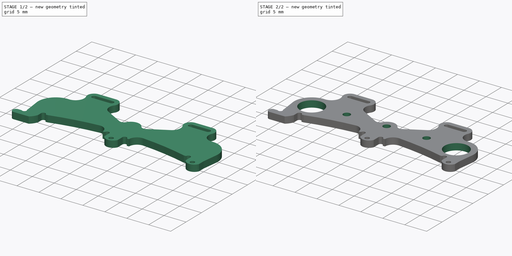
[diagram: build sequence overview — one tinted view per stage of 2, left to right]
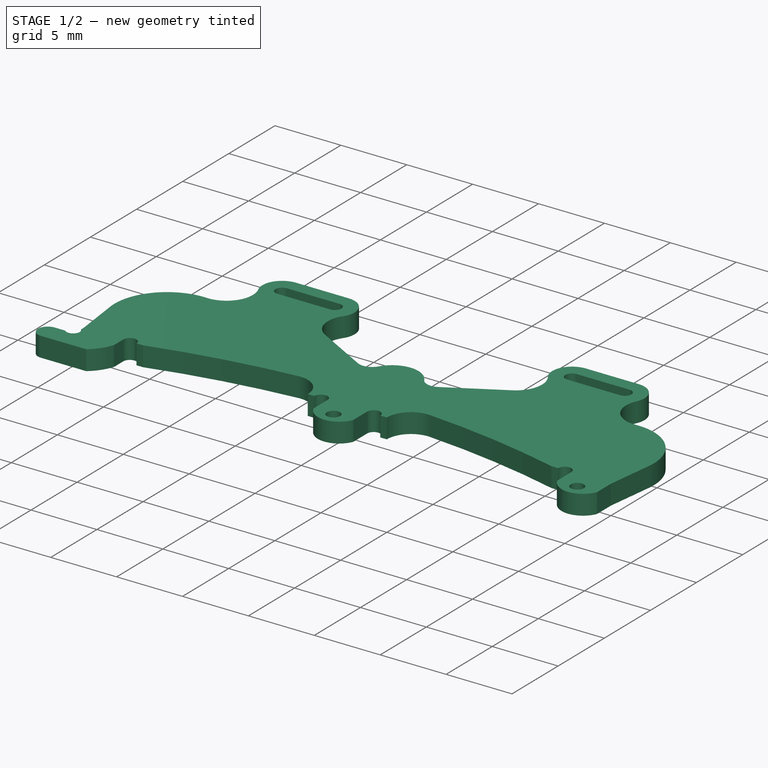
[diagram: stage 1 of 2 — iso view after this stage's code; geometry added in this stage tinted green]
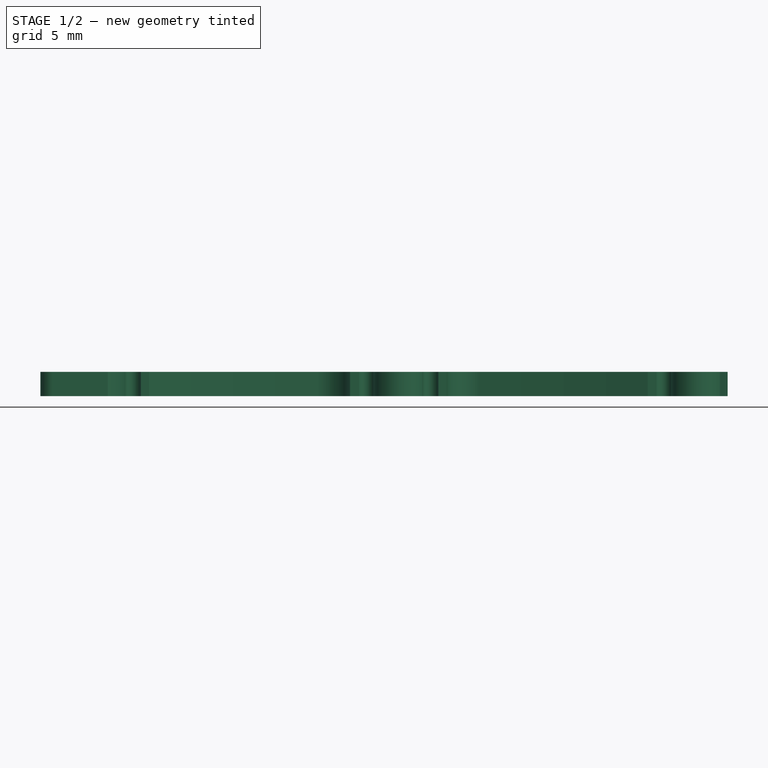
[diagram: stage 1 of 2 — front view after this stage's code; geometry added in this stage tinted green]
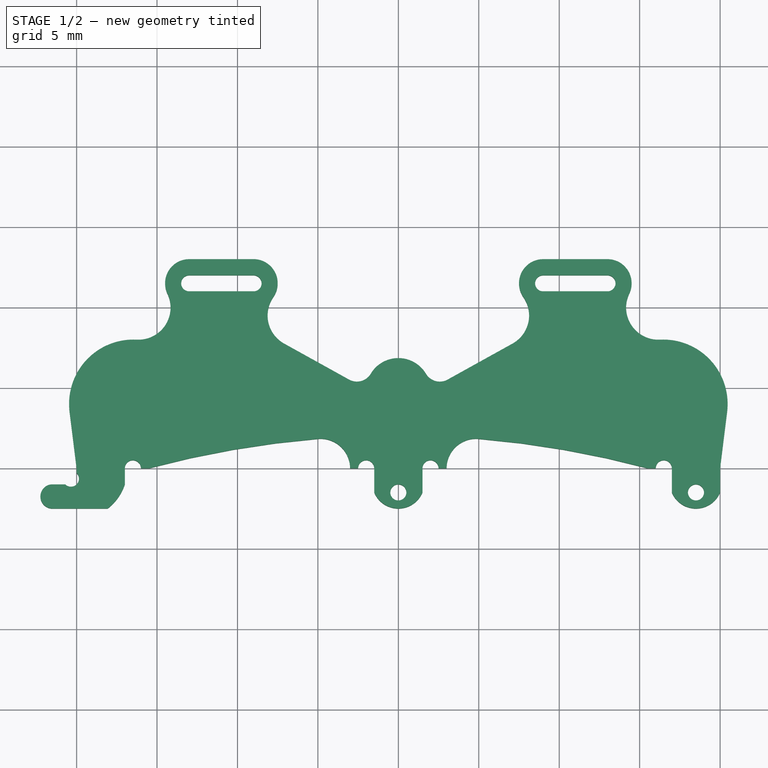
[diagram: stage 1 of 2 — top view after this stage's code; geometry added in this stage tinted green]
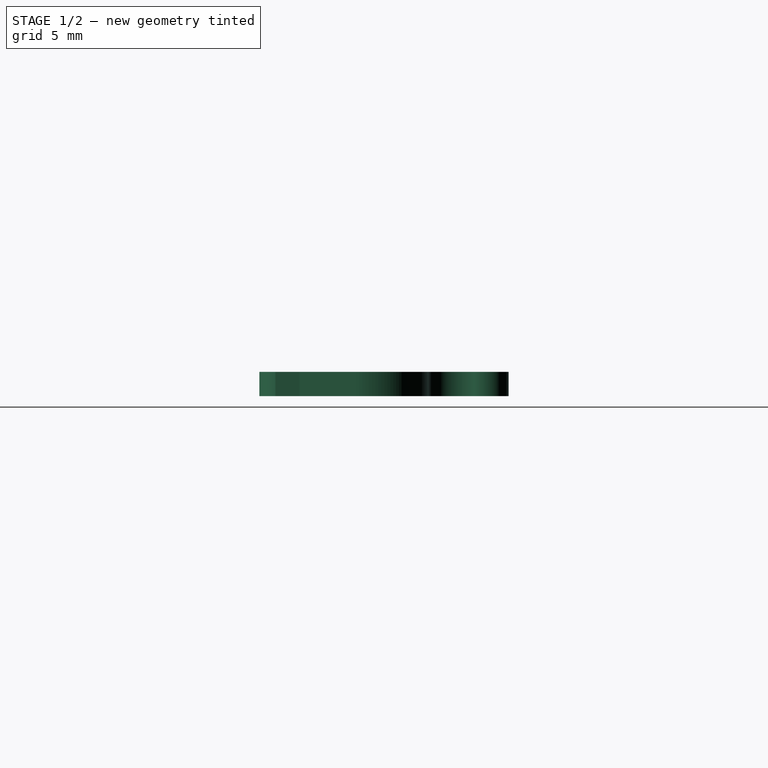
[diagram: stage 1 of 2 — right view after this stage's code; geometry added in this stage tinted green]
FCSTD DOCUMENT  (FreeCAD 0.18.1R)
Label: Flanc
License: All rights reserved
LicenseURL: http://en.wikipedia.org/wiki/All_rights_reserved
objects: Sketcher::SketchObject×3, PartDesign::Pocket×2, Spreadsheet::Sheet×1, PartDesign::Pad×1, PartDesign::Body×1
note: 10 computed .brp shape members not serialized (recipe doc carries the construction recipe); baked Part::Feature solids carry a one-line shape summary decoded from their .brp

FEATURE [Spreadsheet::Sheet] Spreadsheet
  cells = C1=nb dents; D1=Module; E1=r primitif; F1= Entraxe; B2=Z1; C2=11; D2=0.15; E2(Z1_rPrimitif)==D2 * C2 / 2; F2(z1z2_entraxe)==D2 * (C2 + C3) / 2 + 0.04 * D2 / (2 * tan(20)); B3=Z2; C3=88; E3(Z2_rPrimitif)==D2 * C3 / 2; F3(z2z3_entraxe)==D2 * (C4 + C3) / 2 + 0.04 * D2 / (2 * tan(20)); B4=Z3; C4=33; E4(Z3_rPrimitif)==D2 * C4 / 2; B6=Garde sol; C6(garde_sol)=2; B7=r Pneu; C7(pneu_rayon)==15.7 / 2
FEATURE [Sketcher::SketchObject] Sketch
  MapMode = 5
  Support = -> [XY_Plane]
  expr: Constraints[0] = Spreadsheet.pneu_rayon
  expr: Constraints[13] = Spreadsheet.Z1_rPrimitif
  expr: Constraints[8] = Spreadsheet.Z3_rPrimitif
  expr: Constraints[9] = Spreadsheet.z2z3_entraxe
  expr: Constraints[21] = Spreadsheet.z1z2_entraxe
  expr: Constraints[28] = Spreadsheet.garde_sol + 1
  expr: Constraints[6] = Spreadsheet.Z2_rPrimitif
  sketch-geometry (14):
    g0: Circle [constr] CenterX=-9.08324 CenterY=4.85 CenterZ=0 NormalX=0 NormalY=0 NormalZ=1 AngleXU=0 Radius=7.85
    g1: Circle [constr] CenterX=-9.08324 CenterY=4.85 CenterZ=0 NormalX=0 NormalY=0 NormalZ=1 AngleXU=0 Radius=6.6
    g2: Circle [constr] CenterX=9.08324 CenterY=4.85 CenterZ=0 NormalX=0 NormalY=0 NormalZ=1 AngleXU=0 Radius=6.6
    g3: LineSegment [constr] StartX=-9.08324 StartY=4.85 StartZ=0 EndX=9.08324 EndY=4.85 EndZ=0
    g4: Circle [constr] CenterX=0 CenterY=4.85 CenterZ=0 NormalX=0 NormalY=0 NormalZ=1 AngleXU=0 Radius=2.475
    g5: LineSegment [constr] StartX=-9.08324 StartY=4.85 StartZ=0 EndX=-9.08324 EndY=-3 EndZ=0
    g6: Circle [constr] CenterX=-16.4677 CenterY=4 CenterZ=0 NormalX=0 NormalY=0 NormalZ=1 AngleXU=0 Radius=0.825
    g7: Circle CenterX=-9.08324 CenterY=4.85 CenterZ=0 NormalX=0 NormalY=0 NormalZ=1 AngleXU=0 Radius=0.8
    g8: Circle CenterX=9.08324 CenterY=4.85 CenterZ=0 NormalX=0 NormalY=0 NormalZ=1 AngleXU=0 Radius=0.8
    g9: Circle CenterX=0 CenterY=4.85 CenterZ=0 NormalX=0 NormalY=0 NormalZ=1 AngleXU=0 Radius=0.8
    g10: Circle CenterX=-16.4677 CenterY=4 CenterZ=0 NormalX=0 NormalY=0 NormalZ=1 AngleXU=0 Radius=2.7
    g11: LineSegment [constr] StartX=-16.4677 StartY=4 StartZ=0 EndX=-16.4677 EndY=1.3 EndZ=0
    g12: LineSegment [constr] StartX=-16.4677 StartY=1.3 StartZ=0 EndX=-16.4677 EndY=0 EndZ=0
    g13: Circle CenterX=16.4677 CenterY=4 CenterZ=0 NormalX=0 NormalY=0 NormalZ=1 AngleXU=0 Radius=2.7
  constraints (34):
    c: Radius(g0) = 7.85
    c: Coincident(g1,g0)
    c: Coincident(g3,g0)
    c: Coincident(g3,g2)
    c: Symmetric(g0,g2,g-2)
    c: Equal(g1,g2)
    c: Radius(g1) = 6.6
    c: PointOnObject(g4,g-2)
    c: Radius(g4) = 2.475
    c: Distance(g3,g4) = 9.08324
    c: PointOnObject(g5,g0)
    c: Coincident(g5,g0)
    c: Vertical(g5)
    c: Radius(g6) = 0.825
    c: Coincident(g4,g9)
    c: Radius(g7) = 0.8
    c: Equal(g7,g9)
    c: Equal(g7,g8)
    c: Coincident(g7,g0)
    c: Coincident(g8,g2)
    c: Radius(g10) = 2.7
    c: Distance(g10,g7) = 7.43324
    c: Coincident(g11,g10)
    c: PointOnObject(g11,g10)
    c: Vertical(g11)
    c: Coincident(g12,g11)
    c: Vertical(g12)
    c: DistanceY(g12,g12) = 1.3
    c: DistanceY(g5,g12) = 3
    c: Coincident(g6,g10)
    c: PointOnObject(g12,g-1)
    c: Radius(g13) = 2.7
    c: Symmetric(g13,g10,g-2)
    c: Horizontal(g9,g7)
FEATURE [Sketcher::SketchObject] Sketch006
  MapMode = 5
  Support = -> [XY_Plane]
  sketch-geometry (9):
    g0: ArcOfCircle CenterX=-13 CenterY=11.5 CenterZ=0 NormalX=0 NormalY=0 NormalZ=1 AngleXU=0 Radius=0.5 StartAngle=1.5708 EndAngle=4.71239
    g1: ArcOfCircle CenterX=-9 CenterY=11.5 CenterZ=0 NormalX=0 NormalY=0 NormalZ=1 AngleXU=0 Radius=0.5 StartAngle=4.71239 EndAngle=7.85398
    g2: LineSegment StartX=-13 StartY=11 StartZ=0 EndX=-9 EndY=11 EndZ=0
    g3: LineSegment StartX=-13 StartY=12 StartZ=0 EndX=-9 EndY=12 EndZ=0
    g4: ArcOfCircle CenterX=9 CenterY=11.5 CenterZ=0 NormalX=0 NormalY=0 NormalZ=1 AngleXU=0 Radius=0.5 StartAngle=1.5708 EndAngle=4.71239
    g5: ArcOfCircle CenterX=13 CenterY=11.5 CenterZ=0 NormalX=0 NormalY=0 NormalZ=1 AngleXU=0 Radius=0.5 StartAngle=4.71239 EndAngle=7.85398
    g6: LineSegment StartX=9 StartY=11 StartZ=0 EndX=13 EndY=11 EndZ=0
    g7: LineSegment StartX=9 StartY=12 StartZ=0 EndX=13 EndY=12 EndZ=0
    g8: LineSegment [constr] StartX=-9 StartY=11.5 StartZ=0 EndX=9 EndY=11.5 EndZ=0
  constraints (22):
    c: Tangent(g0,g3) = 1.5708
    c: Tangent(g0,g2) = -1.5708
    c: Tangent(g2,g1) = -1.5708
    c: Tangent(g3,g1) = 1.5708
    c: Horizontal(g2)
    c: Equal(g0,g1)
    c: Tangent(g4,g7) = 1.5708
    c: Tangent(g4,g6) = -1.5708
    c: Tangent(g6,g5) = -1.5708
    c: Tangent(g7,g5) = 1.5708
    c: Horizontal(g6)
    c: Equal(g4,g5)
    c: Coincident(g8,g1)
    c: Horizontal(g8)
    c: Radius(g0) = 0.5
    c: DistanceX(g2,g2) = 4
    c: DistanceX(g0,g-1) = 13
    c: DistanceY(g-1,g0) = 11.5
    c: DistanceX(g-1,g5) = 13
    c: DistanceX(g6,g6) = 4
    c: Coincident(g4,g8)
    c: Equal(g0,g4)
FEATURE [Sketcher::SketchObject] Sketch007
  MapMode = 5
  expr: Constraints[100] = Spreadsheet.pneu_rayon
  expr: Constraints[108] = Spreadsheet.z1z2_entraxe
  expr: Constraints[98] = Spreadsheet.garde_sol
  expr: Constraints[106] = Spreadsheet.z2z3_entraxe * 2
  expr: Constraints[99] = Spreadsheet.z1z2_entraxe
  sketch-geometry (65):
    g0: LineSegment [constr] StartX=-20 StartY=-1 StartZ=0 EndX=20 EndY=-1 EndZ=0
    g1: LineSegment [constr] StartX=-20 StartY=13 StartZ=0 EndX=20 EndY=13 EndZ=0
    g2: LineSegment [constr] StartX=20 StartY=13 StartZ=0 EndX=20 EndY=0 EndZ=0
    g3: LineSegment [constr] StartX=20 StartY=0 StartZ=0 EndX=-20 EndY=0 EndZ=0
    g4: LineSegment [constr] StartX=-20 StartY=0 StartZ=0 EndX=-20 EndY=13 EndZ=0
    g5: LineSegment StartX=-20 StartY=0 StartZ=0 EndX=-20 EndY=-0.292893 EndZ=0
    g6: LineSegment [constr] StartX=-20 StartY=-1 StartZ=0 EndX=-20 EndY=-0.292893 EndZ=0
    g7: LineSegment [constr] StartX=-20 StartY=-1 StartZ=0 EndX=-20.7071 EndY=-1 EndZ=0
    g8: ArcOfCircle CenterX=-20.3536 CenterY=-0.646447 CenterZ=0 NormalX=0 NormalY=0 NormalZ=1 AngleXU=0 Radius=0.5 StartAngle=3.92699 EndAngle=7.06858
    g9: LineSegment StartX=-20.7071 StartY=-1 StartZ=0 EndX=-21.5 EndY=-1 EndZ=0
    g10: ArcOfCircle CenterX=-21.5 CenterY=-1.75 CenterZ=0 NormalX=0 NormalY=0 NormalZ=1 AngleXU=0 Radius=0.75 StartAngle=1.5708 EndAngle=4.71239
    g11: LineSegment StartX=-21.5 StartY=-2.5 StartZ=0 EndX=-18.0635 EndY=-2.5 EndZ=0
    g12: ArcOfCircle CenterX=-16.5 CenterY=0 CenterZ=0 NormalX=0 NormalY=0 NormalZ=1 AngleXU=0 Radius=0.5 StartAngle=0 EndAngle=3.14159
    g13: ArcOfCircle CenterX=-20 CenterY=0 CenterZ=0 NormalX=0 NormalY=0 NormalZ=1 AngleXU=0 Radius=3.16228 StartAngle=5.37145 EndAngle=5.96143
    g14: LineSegment StartX=-17 StartY=0 StartZ=0 EndX=-17 EndY=-1 EndZ=0
    g15: ArcOfCircle CenterX=16.5 CenterY=0 CenterZ=0 NormalX=0 NormalY=0 NormalZ=1 AngleXU=0 Radius=0.5 StartAngle=0 EndAngle=3.14159
    g16: LineSegment StartX=17 StartY=0 StartZ=0 EndX=17 EndY=-1.5 EndZ=0
    g17: ArcOfCircle CenterX=18.5 CenterY=-0.875 CenterZ=0 NormalX=0 NormalY=0 NormalZ=1 AngleXU=0 Radius=1.625 StartAngle=3.53638 EndAngle=5.88839
    g18: LineSegment StartX=20 StartY=-1.5 StartZ=0 EndX=20 EndY=0 EndZ=0
    g19: Circle CenterX=18.5 CenterY=-1.5 CenterZ=0 NormalX=0 NormalY=0 NormalZ=1 AngleXU=0 Radius=0.5
    g20: LineSegment [constr] StartX=17 StartY=-1.5 StartZ=0 EndX=17 EndY=-2.5 EndZ=0
    g21: LineSegment [constr] StartX=17 StartY=-2.5 StartZ=0 EndX=20 EndY=-2.5 EndZ=0
    g22: ArcOfCircle CenterX=-13 CenterY=11.5 CenterZ=0 NormalX=0 NormalY=0 NormalZ=1 AngleXU=0 Radius=1.5 StartAngle=1.5708 EndAngle=3.58703
    g23: ArcOfCircle CenterX=13 CenterY=11.5 CenterZ=0 NormalX=0 NormalY=0 NormalZ=1 AngleXU=0 Radius=1.5 StartAngle=5.83775 EndAngle=7.85398
    g24: ArcOfCircle CenterX=-9 CenterY=11.5 CenterZ=0 NormalX=0 NormalY=0 NormalZ=1 AngleXU=0 Radius=1.5 StartAngle=5.67496 EndAngle=7.85398
    g25: LineSegment StartX=-13 StartY=13 StartZ=0 EndX=-9 EndY=13 EndZ=0
    g26: ArcOfCircle CenterX=9 CenterY=11.5 CenterZ=0 NormalX=0 NormalY=0 NormalZ=1 AngleXU=0 Radius=1.5 StartAngle=1.5708 EndAngle=3.74982
    g27: LineSegment StartX=13 StartY=13 StartZ=0 EndX=9 EndY=13 EndZ=0
    g28: ArcOfCircle CenterX=6.12768 CenterY=9.50006 CenterZ=0 NormalX=0 NormalY=0 NormalZ=1 AngleXU=0 Radius=2 StartAngle=5.21877 EndAngle=6.89141
    g29: ArcOfCircle CenterX=-6.12768 CenterY=9.50006 CenterZ=0 NormalX=0 NormalY=0 NormalZ=1 AngleXU=0 Radius=2 StartAngle=2.53337 EndAngle=4.20601
    g30: LineSegment [constr] StartX=-13 StartY=11.5 StartZ=0 EndX=13 EndY=11.5 EndZ=0
    g31: ArcOfCircle CenterX=0 CenterY=-57.9634 CenterZ=0 NormalX=0 NormalY=0 NormalZ=1 AngleXU=0 Radius=60 StartAngle=1.3095 EndAngle=1.48757
    g32: LineSegment StartX=-16 StartY=0 StartZ=0 EndX=-15.5 EndY=0 EndZ=0
    g33: LineSegment StartX=16 StartY=0 StartZ=0 EndX=15.5 EndY=0 EndZ=0
    g34: Circle [constr] CenterX=-16.4677 CenterY=4 CenterZ=0 NormalX=0 NormalY=0 NormalZ=1 AngleXU=0 Radius=4
    g35: Circle [constr] CenterX=-9.08324 CenterY=4.85 CenterZ=0 NormalX=0 NormalY=0 NormalZ=1 AngleXU=0 Radius=7.85
    g36: LineSegment [constr] StartX=-9.08324 StartY=4.85 StartZ=0 EndX=-9.08324 EndY=-3 EndZ=0
    g37: LineSegment StartX=-20 StartY=0 StartZ=0 EndX=-20.437 EndY=3.50514 EndZ=0
    g38: LineSegment StartX=20 StartY=0 StartZ=0 EndX=20.437 EndY=3.50514 EndZ=0
    g39: Circle [constr] CenterX=9.08324 CenterY=4.85 CenterZ=0 NormalX=0 NormalY=0 NormalZ=1 AngleXU=0 Radius=7.85
    g40: Circle [constr] CenterX=16.4677 CenterY=4 CenterZ=0 NormalX=0 NormalY=0 NormalZ=1 AngleXU=0 Radius=4
    g41: ArcOfCircle CenterX=16.4677 CenterY=4 CenterZ=0 NormalX=0 NormalY=0 NormalZ=1 AngleXU=0 Radius=4 StartAngle=6.15915 EndAngle=7.90554
    g42: Circle [constr] CenterX=-9.08324 CenterY=4.85 CenterZ=0 NormalX=0 NormalY=0 NormalZ=1 AngleXU=0 Radius=3.5
    g43: LineSegment StartX=1.5 StartY=1e-16 StartZ=0 EndX=1.5 EndY=-1.5 EndZ=0
    g44: LineSegment StartX=-1.5 StartY=-1.5 StartZ=0 EndX=-1.5 EndY=0 EndZ=0
    g45: ArcOfCircle CenterX=1e-16 CenterY=-0.875 CenterZ=0 NormalX=0 NormalY=0 NormalZ=1 AngleXU=0 Radius=1.625 StartAngle=3.53638 EndAngle=5.88839
    g46: LineSegment [constr] StartX=1.5 StartY=-2.5 StartZ=0 EndX=-1.5 EndY=-2.5 EndZ=0
    g47: LineSegment [constr] StartX=-1.5 StartY=-1.5 StartZ=0 EndX=-1.5 EndY=-2.5 EndZ=0
    g48: ArcOfCircle CenterX=0 CenterY=-57.9634 CenterZ=0 NormalX=0 NormalY=0 NormalZ=1 AngleXU=0 Radius=60 StartAngle=1.65402 EndAngle=1.83209
    g49: ArcOfCircle CenterX=16.1585 CenterY=9.99203 CenterZ=0 NormalX=0 NormalY=0 NormalZ=1 AngleXU=0 Radius=2 StartAngle=2.69616 EndAngle=4.76395
    g50: ArcOfCircle CenterX=-16.4677 CenterY=4 CenterZ=0 NormalX=0 NormalY=0 NormalZ=1 AngleXU=0 Radius=4 StartAngle=1.51923 EndAngle=3.26563
    g51: ArcOfCircle CenterX=-16.1585 CenterY=9.99203 CenterZ=0 NormalX=0 NormalY=0 NormalZ=1 AngleXU=0 Radius=2 StartAngle=4.66083 EndAngle=6.72862
    g52: LineSegment [constr] StartX=-9.08324 StartY=4.85 StartZ=0 EndX=9.08324 EndY=4.85 EndZ=0
    g53: ArcOfCircle CenterX=0 CenterY=4.85 CenterZ=0 NormalX=0 NormalY=0 NormalZ=1 AngleXU=0 Radius=2 StartAngle=0.537888 EndAngle=2.6037
    g54: ArcOfCircle CenterX=2.57638 CenterY=6.38697 CenterZ=0 NormalX=0 NormalY=0 NormalZ=1 AngleXU=0 Radius=1 StartAngle=3.67948 EndAngle=5.21876
    g55: ArcOfCircle CenterX=-2.57638 CenterY=6.38697 CenterZ=0 NormalX=0 NormalY=0 NormalZ=1 AngleXU=0 Radius=1 StartAngle=4.20601 EndAngle=5.7453
    g56: LineSegment StartX=3.06139 StartY=5.51246 StartZ=0 EndX=7.09771 EndY=7.75105 EndZ=0
    g57: Circle CenterX=0 CenterY=-1.5 CenterZ=0 NormalX=0 NormalY=0 NormalZ=1 AngleXU=0 Radius=0.5
    g58: LineSegment StartX=-7.09771 StartY=7.75105 StartZ=0 EndX=-3.06139 EndY=5.51246 EndZ=0
    g59: ArcOfCircle CenterX=-4.83532 CenterY=0 CenterZ=0 NormalX=0 NormalY=0 NormalZ=1 AngleXU=0 Radius=1.83532 StartAngle=0 EndAngle=1.65402
    g60: ArcOfCircle CenterX=-2 CenterY=0 CenterZ=0 NormalX=0 NormalY=0 NormalZ=1 AngleXU=0 Radius=0.5 StartAngle=0 EndAngle=3.14159
    g61: LineSegment StartX=-2.5 StartY=0 StartZ=0 EndX=-3 EndY=0 EndZ=0
    g62: ArcOfCircle CenterX=4.83532 CenterY=0 CenterZ=0 NormalX=0 NormalY=0 NormalZ=1 AngleXU=0 Radius=1.83532 StartAngle=1.48757 EndAngle=3.14159
    g63: LineSegment StartX=2.5 StartY=0 StartZ=0 EndX=3 EndY=0 EndZ=0
    g64: ArcOfCircle CenterX=2 CenterY=0 CenterZ=0 NormalX=0 NormalY=0 NormalZ=1 AngleXU=0 Radius=0.5 StartAngle=0 EndAngle=3.14159
  constraints (192):
    c: Symmetric(g0,g0,g-2)
    c: DistanceX(g0,g0) = 40
    c: Coincident(g1,g2)
    c: Coincident(g2,g3)
    c: Coincident(g3,g4)
    c: Coincident(g4,g1)
    c: Horizontal(g1)
    c: Horizontal(g3)
    c: Vertical(g4)
    c: Equal(g1,g0)
    c: DistanceY(g0,g3) = 1
    c: Vertical(g0,g3)
    c: Coincident(g5,g3)
    c: Vertical(g5)
    c: Coincident(g6,g0)
    c: Coincident(g6,g5)
    c: Coincident(g7,g6)
    c: Horizontal(g7)
    c: Coincident(g8,g5)
    c: Coincident(g8,g7)
    c: Equal(g7,g6)
    c: PointOnObject(g6,g8)
    c: Radius(g8) = 0.5
    c: Coincident(g9,g8)
    c: Horizontal(g9)
    c: Horizontal(g11)
    c: PointOnObject(g12,g3)
    c: PointOnObject(g12,g3)
    c: PointOnObject(g12,g3)
    c: Radius(g12) = 0.5
    c: Tangent(g10,g9) = -1.5708
    c: Tangent(g11,g10) = -1.5708
    c: Radius(g10) = 0.75
    c: DistanceX(g9,g5) = 1.5
    c: Coincident(g13,g4)
    c: Coincident(g13,g11)
    c: Coincident(g14,g12)
    c: Vertical(g14)
    c: Coincident(g13,g14)
    c: PointOnObject(g13,g0)
    c: Distance(g12,g4) = 3
    c: PointOnObject(g15,g3)
    c: PointOnObject(g15,g3)
    c: PointOnObject(g15,g3)
    c: Coincident(g16,g15)
    c: Vertical(g16)
    c: Coincident(g18,g17)
    c: Coincident(g18,g2)
    c: Vertical(g18)
    c: DistanceX(g15,g2) = 3
    c: Coincident(g17,g16)
    c: Radius(g19) = 0.5
    c: Horizontal(g16,g19)
    c: Horizontal(g19,g17)
    c: DistanceY(g16,g15) = 1.5
    c: Coincident(g20,g16)
    c: Vertical(g20)
    c: Coincident(g21,g20)
    c: Horizontal(g21)
    c: DistanceX(g21,g21) = 3
    c: DistanceY(g20,g20) = 1
    c: Tangent(g17,g21)
    c: Radius(g15) = 0.5
    c: Vertical(g19,g17)
    c: PointOnObject(g12,g-1)
    c: Distance(g22,g3) = 11.5
    c: Radius(g22) = 1.5
    c: DistanceX(g22,g24) = 4
    c: PointOnObject(g24,g1)
    c: Tangent(g24,g1)
    c: Coincident(g25,g24)
    c: Horizontal(g25)
    c: Tangent(g25,g22) = 1.5708
    c: DistanceX(g26,g23) = 4
    c: Horizontal(g27)
    c: Tangent(g26,g27) = -1.5708
    c: Tangent(g28,g26) = 1.5708
    c: Horizontal(g29,g28)
    c: Tangent(g29,g24) = 1.5708
    c: Coincident(g30,g22)
    c: Coincident(g30,g23)
    c: PointOnObject(g24,g30)
    c: PointOnObject(g26,g30)
    c: Tangent(g27,g23) = -1.5708
    c: PointOnObject(g31,g-2)
    c: Coincident(g32,g12)
    c: Coincident(g32,g48)
    c: Horizontal(g32)
    c: Coincident(g33,g15)
    c: Coincident(g33,g31)
    c: Horizontal(g33)
    c: Radius(g31) = 60
    c: DistanceX(g32,g32) = 0.5
    c: Radius(g34) = 4
    c: Tangent(g34,g3)
    c: Coincident(g36,g35)
    c: PointOnObject(g36,g35)
    c: Vertical(g36)
    c: DistanceY(g36,g9) = 2
    c: Distance(g34,g35) = 7.43324
    c: Radius(g35) = 7.85
    c: Coincident(g37,g5)
    c: Coincident(g38,g18)
    c: Equal(g39,g35)
    c: Equal(g40,g34)
    c: PointOnObject(g0,g18)
    c: DistanceX(g35,g39) = 18.1665
    c: Symmetric(g39,g35,g-2)
    c: Distance(g39,g40) = 7.43324
    c: Coincident(g41,g40)
    c: Tangent(g40,g3)
    c: Tangent(g38,g41) = -1.5708
    c: PointOnObject(g26,g1)
    c: Coincident(g42,g35)
    c: Radius(g42) = 3.5
    c: Vertical(g43)
    c: Vertical(g44)
    c: Coincident(g45,g43)
    c: Coincident(g45,g44)
    c: Symmetric(g43,g44,g-2)
    c: Horizontal(g46)
    c: Coincident(g47,g44)
    c: Coincident(g47,g46)
    c: DistanceX(g46,g46) = 3
    c: Vertical(g47)
    c: DistanceY(g47,g47) = 1
    c: Horizontal(g44,g43)
    c: Tangent(g46,g45)
    c: Horizontal(g46,g20)
    c: Equal(g31,g48)
    c: Coincident(g31,g48)
    c: DistanceX(g-1,g23) = 13
    c: DistanceX(g22,g-1) = 13
    c: Radius(g29) = 2
    c: PointOnObject(g41,g40)
    c: PointOnObject(g44,g3)
    c: Vertical(g43,g46)
    c: Tangent(g49,g23) = 1.5708
    c: Tangent(g49,g41) = 1.5708
    c: Coincident(g50,g34)
    c: Tangent(g51,g22) = 1.5708
    c: Tangent(g51,g50) = 1.5708
    c: Radius(g51) = 2
    c: PointOnObject(g50,g34)
    c: Tangent(g50,g37) = 1.5708
    c: Coincident(g52,g35)
    c: Coincident(g52,g39)
    c: Coincident(g55,g53)
    c: Coincident(g56,g54)
    c: Coincident(g56,g28)
    c: PointOnObject(g53,g-2)
    c: PointOnObject(g53,g52)
    c: Radius(g53) = 2
    c: Tangent(g54,g53) = 1.5708
    c: Tangent(g54,g56)
    c: Tangent(g55,g53)
    c: Tangent(g56,g28)
    c: Equal(g54,g55)
    c: Radius(g54) = 1
    c: Horizontal(g53,g53)
    c: Horizontal(g29,g28)
    c: Horizontal(g55,g54)
    c: PointOnObject(g57,g-2)
    c: Equal(g19,g57)
    c: Horizontal(g57,g19)
    c: Horizontal(g30)
    c: Coincident(g58,g29)
    c: Coincident(g58,g55)
    c: Tangent(g58,g55)
    c: Tangent(g58,g29)
    c: Tangent(g58,g42)
    c: Tangent(g59,g48) = -1.5708
    c: PointOnObject(g60,g3)
    c: Coincident(g60,g44)
    c: Radius(g60) = 0.5
    c: Coincident(g61,g60)
    c: Horizontal(g61)
    c: Coincident(g59,g61)
    c: Perpendicular(g59,g61)
    c: PointOnObject(g59,g3)
    c: DistanceX(g61,g61) = 0.5
    c: Coincident(g63,g64)
    c: Horizontal(g63)
    c: Coincident(g62,g63)
    c: Perpendicular(g62,g63)
    c: Tangent(g31,g62) = -1.5708
    c: Equal(g63,g61)
    c: PointOnObject(g62,g3)
    c: Coincident(g64,g43)
    c: Equal(g64,g60)
    c: PointOnObject(g64,g3)
    c: Equal(g49,g51)
FEATURE [PartDesign::Pad] Pad001
  Length = 1.5
  Length2 = 100
  Profile = -> Sketch007
  Type = 0
FEATURE [PartDesign::Pocket] Pocket
  BaseFeature = -> Pad001
  Length = 5
  Length2 = 100
  Midplane = true
  Profile = -> Sketch006
  Reversed = true
  Type = 1
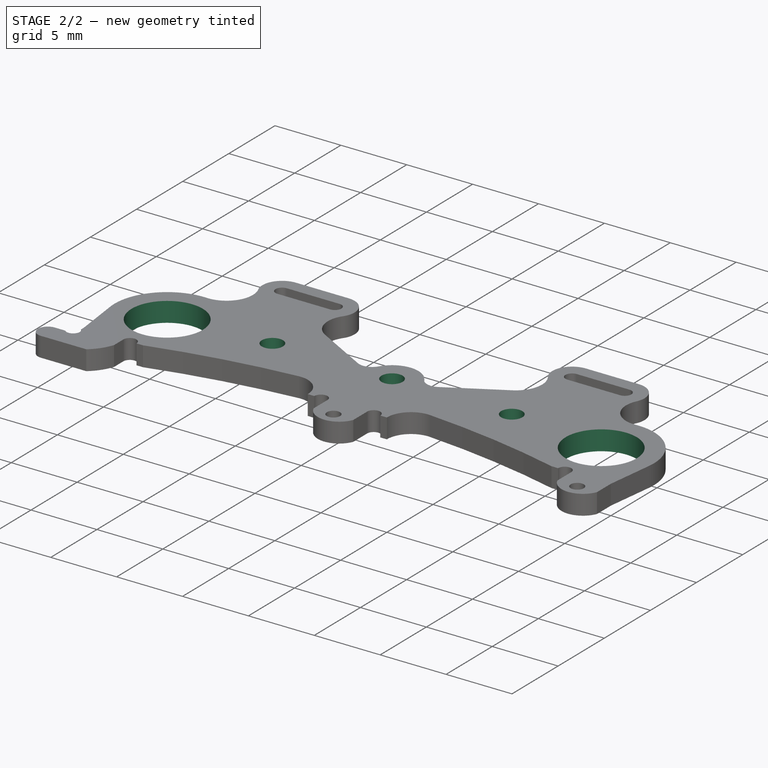
[diagram: stage 2 of 2 — iso view after this stage's code; geometry added in this stage tinted green]
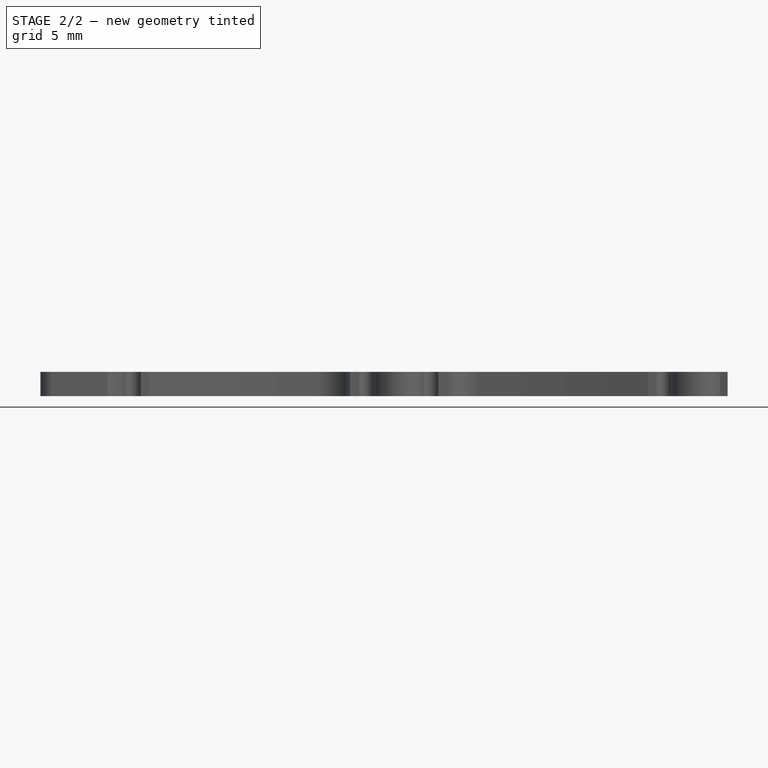
[diagram: stage 2 of 2 — front view after this stage's code; geometry added in this stage tinted green]
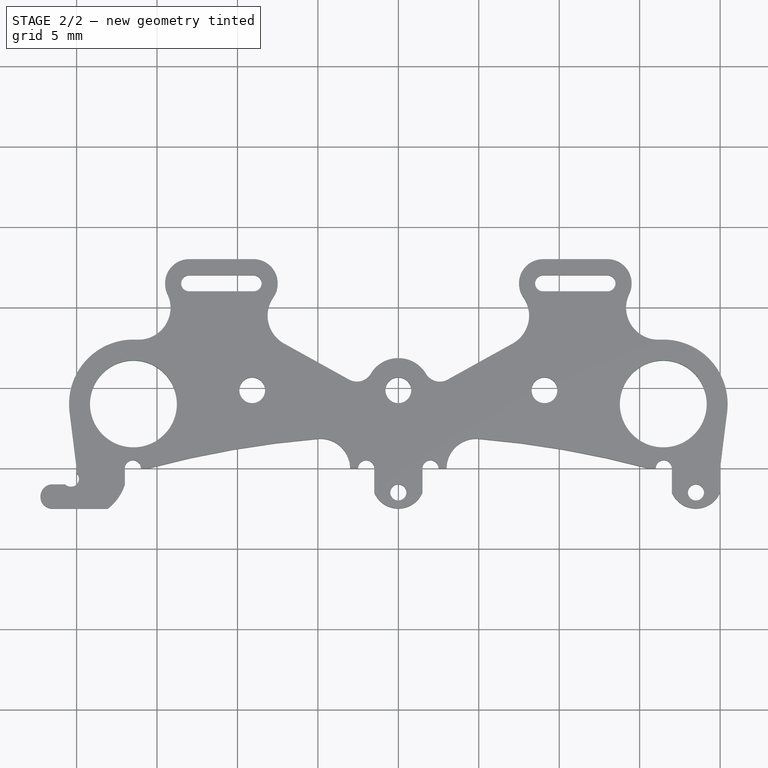
[diagram: stage 2 of 2 — top view after this stage's code; geometry added in this stage tinted green]
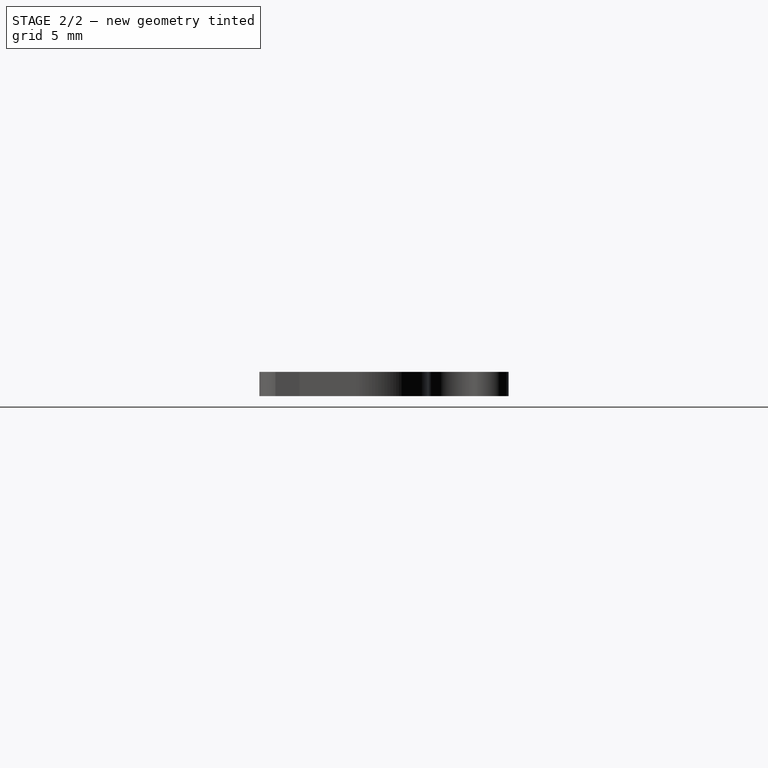
[diagram: stage 2 of 2 — right view after this stage's code; geometry added in this stage tinted green]
FEATURE [PartDesign::Pocket] Pocket001
  BaseFeature = -> Pocket
  Length = 6
  Length2 = 100
  Midplane = true
  Profile = -> Sketch
  Reversed = true
  Type = 1
FEATURE [PartDesign::Body] Body
  Group = -> [Pad001,Sketch007,Sketch,Sketch006,Pocket,Pocket001]
  Origin = -> Origin
  Tip = -> Pocket001
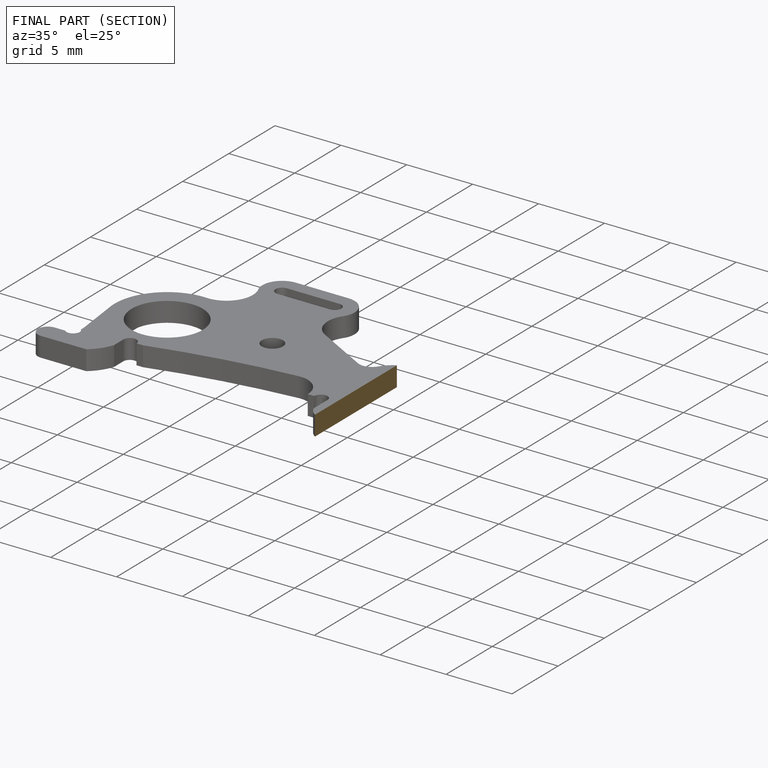
[diagram: finished part — half-section view (interior)]
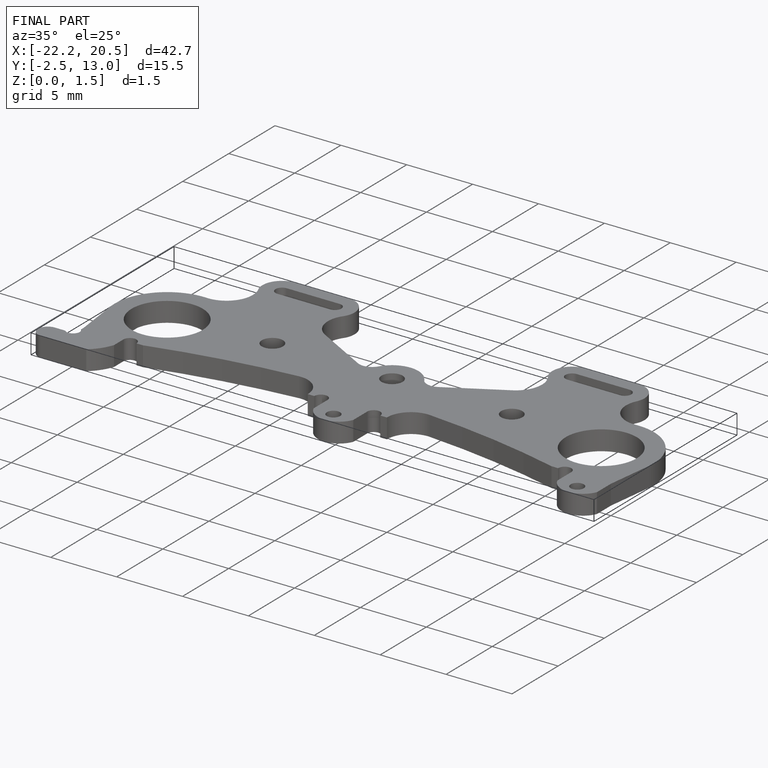
[diagram: finished part — iso view with bounding-box wireframe]
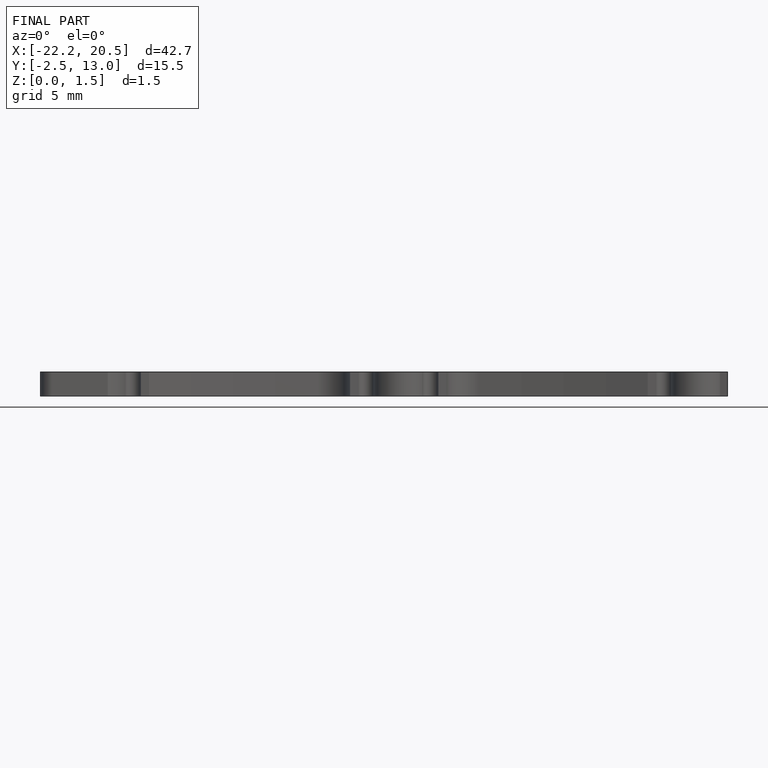
[diagram: finished part — front view with bounding-box wireframe]
